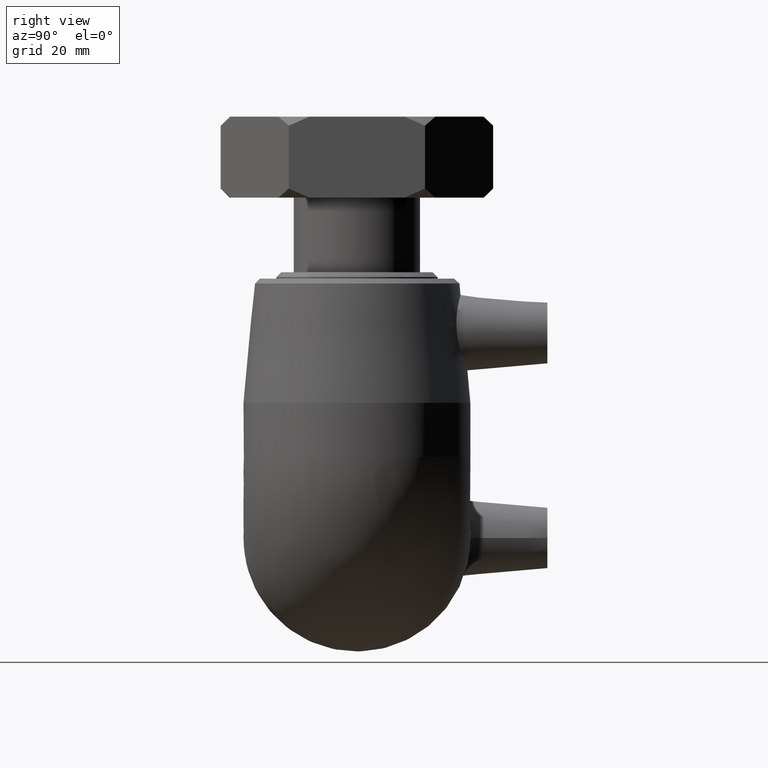
[diagram: clean part render]
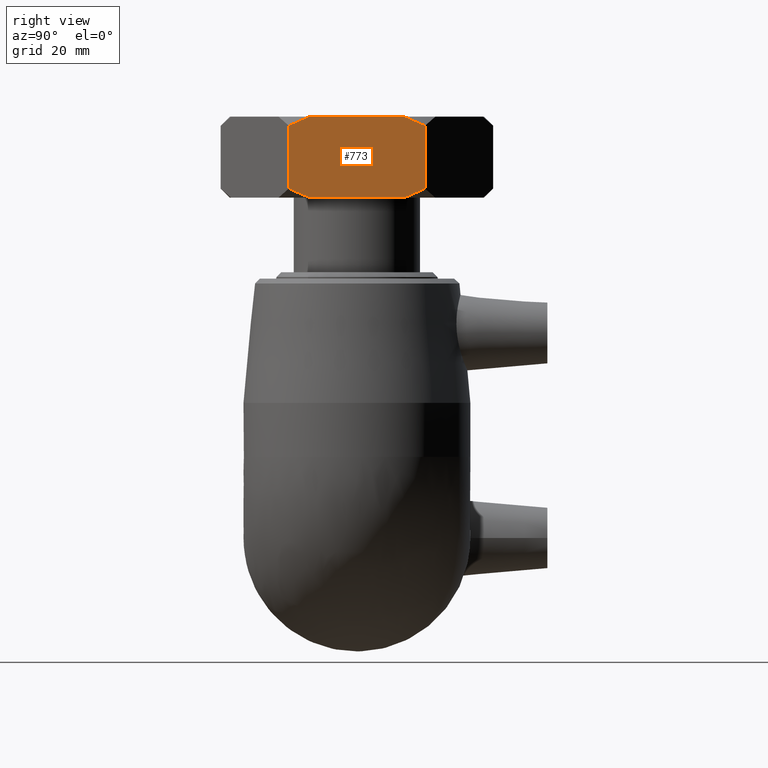
[diagram: same view with one face highlighted and labeled with its STEP entity id]
A machine part, right view. The second image highlights one B-rep face of the part: STEP entity #773.
In plain terms, the highlighted planar face has unit normal (1, 0, -0).
Its self-contained STEP definition (entity closure, byte-faithful):
#22=LINE('',#1224,#40);
#32=LINE('',#1301,#50);
#33=LINE('',#1307,#51);
#34=LINE('',#1312,#52);
#40=VECTOR('',#963,15.5155);
#50=VECTOR('',#981,23.4097772696048);
#51=VECTOR('',#982,15.5155);
#52=VECTOR('',#983,23.4097772696045);
#71=(
BOUNDED_CURVE()
B_SPLINE_CURVE(2,(#1293,#1294,#1295),.UNSPECIFIED.,.F.,.F.)
B_SPLINE_CURVE_WITH_KNOTS((3,3),(0.,0.558410804855176),.UNSPECIFIED.)
CURVE()
GEOMETRIC_REPRESENTATION_ITEM()
RATIONAL_B_SPLINE_CURVE((1.,1.00310458904772,1.))
REPRESENTATION_ITEM('')
);
#72=(
BOUNDED_CURVE()
B_SPLINE_CURVE(2,(#1297,#1298,#1299),.UNSPECIFIED.,.F.,.F.)
B_SPLINE_CURVE_WITH_KNOTS((3,3),(0.,0.558410804855169),.UNSPECIFIED.)
CURVE()
GEOMETRIC_REPRESENTATION_ITEM()
RATIONAL_B_SPLINE_CURVE((1.,1.0031045890472,1.))
REPRESENTATION_ITEM('')
);
#73=(
BOUNDED_CURVE()
B_SPLINE_CURVE(2,(#1303,#1304,#1305),.UNSPECIFIED.,.F.,.F.)
B_SPLINE_CURVE_WITH_KNOTS((3,3),(0.,0.558410804855169),.UNSPECIFIED.)
CURVE()
GEOMETRIC_REPRESENTATION_ITEM()
RATIONAL_B_SPLINE_CURVE((1.,1.00310458904724,1.))
REPRESENTATION_ITEM('')
);
#74=(
BOUNDED_CURVE()
B_SPLINE_CURVE(2,(#1309,#1310,#1311),.UNSPECIFIED.,.F.,.F.)
B_SPLINE_CURVE_WITH_KNOTS((3,3),(0.,0.558410804855177),.UNSPECIFIED.)
CURVE()
GEOMETRIC_REPRESENTATION_ITEM()
RATIONAL_B_SPLINE_CURVE((1.,1.00310458904756,1.))
REPRESENTATION_ITEM('')
);
#99=PLANE('',#841);
#166=FACE_OUTER_BOUND('',#230,.T.);
#230=EDGE_LOOP('',(#588,#589,#590,#591,#592,#593,#594,#595));
#379=VERTEX_POINT('',#1202);
#385=VERTEX_POINT('',#1220);
#404=VERTEX_POINT('',#1292);
#405=VERTEX_POINT('',#1296);
#406=VERTEX_POINT('',#1300);
#407=VERTEX_POINT('',#1302);
#408=VERTEX_POINT('',#1306);
#409=VERTEX_POINT('',#1308);
#463=EDGE_CURVE('',#379,#385,#22,.T.);
#485=EDGE_CURVE('',#379,#404,#71,.T.);
#486=EDGE_CURVE('',#405,#385,#72,.T.);
#487=EDGE_CURVE('',#406,#405,#32,.T.);
#488=EDGE_CURVE('',#407,#406,#73,.T.);
#489=EDGE_CURVE('',#408,#407,#33,.T.);
#490=EDGE_CURVE('',#409,#408,#74,.T.);
#491=EDGE_CURVE('',#404,#409,#34,.T.);
#588=ORIENTED_EDGE('',*,*,#485,.F.);
#589=ORIENTED_EDGE('',*,*,#463,.T.);
#590=ORIENTED_EDGE('',*,*,#486,.F.);
#591=ORIENTED_EDGE('',*,*,#487,.F.);
#592=ORIENTED_EDGE('',*,*,#488,.F.);
#593=ORIENTED_EDGE('',*,*,#489,.F.);
#594=ORIENTED_EDGE('',*,*,#490,.F.);
#595=ORIENTED_EDGE('',*,*,#491,.F.);
#773=ADVANCED_FACE('',(#166),#99,.T.);
#841=AXIS2_PLACEMENT_3D('',#1291,#979,#980);
#963=DIRECTION('',(-2.08166817117217E-16,0.,-1.));
#979=DIRECTION('center_axis',(1.,1.05629425169673E-15,-2.08166817117217E-16));
#980=DIRECTION('ref_axis',(1.06581410364015E-15,-1.,0.));
#981=DIRECTION('',(1.05629425169673E-15,-1.,-2.19885412314921E-31));
#982=DIRECTION('',(-2.08166817117217E-16,0.,-1.));
#983=DIRECTION('',(-1.05629425169673E-15,1.,2.19885412314921E-31));
#1202=CARTESIAN_POINT('',(29.1276819245349,-16.816875,101.75775));
#1220=CARTESIAN_POINT('',(29.1276819245349,-16.816875,86.24225));
#1224=CARTESIAN_POINT('',(29.1276819245349,-16.816875,94.));
#1291=CARTESIAN_POINT('Origin',(29.1276819245349,16.816875,104.));
#1292=CARTESIAN_POINT('',(29.1276819245349,-11.7048886348022,104.));
#1293=CARTESIAN_POINT('Ctrl Pts',(29.1276819245349,-16.8168749999999,101.75775));
#1294=CARTESIAN_POINT('Ctrl Pts',(29.1276819245349,-14.1727441214493,103.079815439275));
#1295=CARTESIAN_POINT('Ctrl Pts',(29.1276819245349,-11.7048886348022,104.));
#1296=CARTESIAN_POINT('',(29.1276819245349,-11.7048886348023,84.));
#1297=CARTESIAN_POINT('Ctrl Pts',(29.1276819245349,-11.7048886348023,84.));
#1298=CARTESIAN_POINT('Ctrl Pts',(29.1276819245349,-14.1727441214493,84.9201845607247));
#1299=CARTESIAN_POINT('Ctrl Pts',(29.1276819245349,-16.8168749999999,86.24225));
#1300=CARTESIAN_POINT('',(29.1276819245349,11.7048886348024,84.));
#1301=CARTESIAN_POINT('',(29.1276819245349,8.40843750000004,84.));
#1302=CARTESIAN_POINT('',(29.1276819245349,16.816875,86.24225));
#1303=CARTESIAN_POINT('Ctrl Pts',(29.1276819245349,16.816875,86.24225));
#1304=CARTESIAN_POINT('Ctrl Pts',(29.1276819245349,14.1727441214494,84.9201845607247));
#1305=CARTESIAN_POINT('Ctrl Pts',(29.1276819245349,11.7048886348024,84.));
#1306=CARTESIAN_POINT('',(29.1276819245349,16.816875,101.75775));
#1307=CARTESIAN_POINT('',(29.1276819245349,16.816875,94.));
#1308=CARTESIAN_POINT('',(29.1276819245349,11.7048886348023,104.));
#1309=CARTESIAN_POINT('Ctrl Pts',(29.1276819245349,11.7048886348023,104.));
#1310=CARTESIAN_POINT('Ctrl Pts',(29.1276819245349,14.1727441214494,103.079815439275));
#1311=CARTESIAN_POINT('Ctrl Pts',(29.1276819245349,16.816875,101.75775));
#1312=CARTESIAN_POINT('',(29.1276819245349,8.40843750000005,104.));